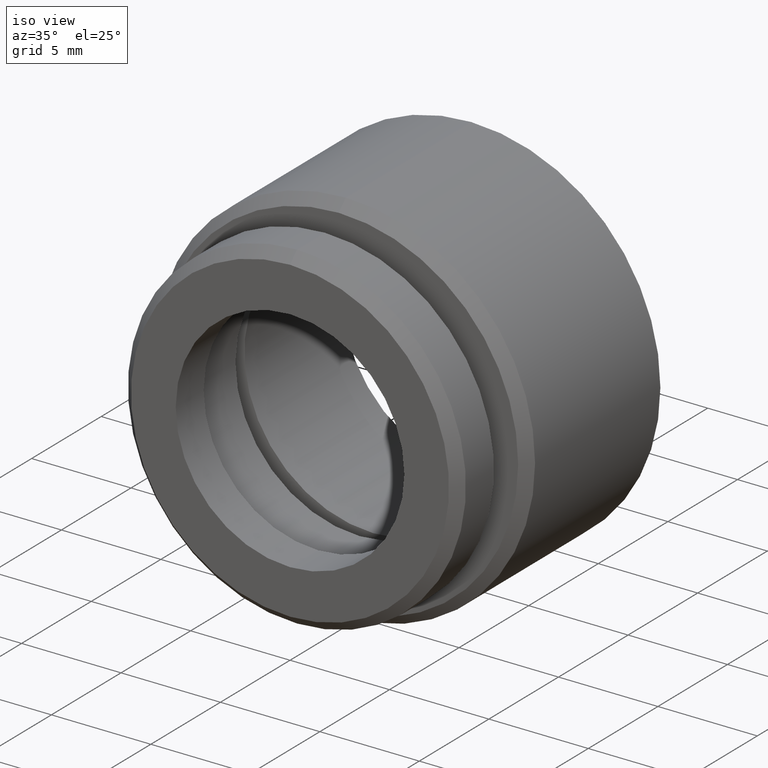
[diagram: clean part render]
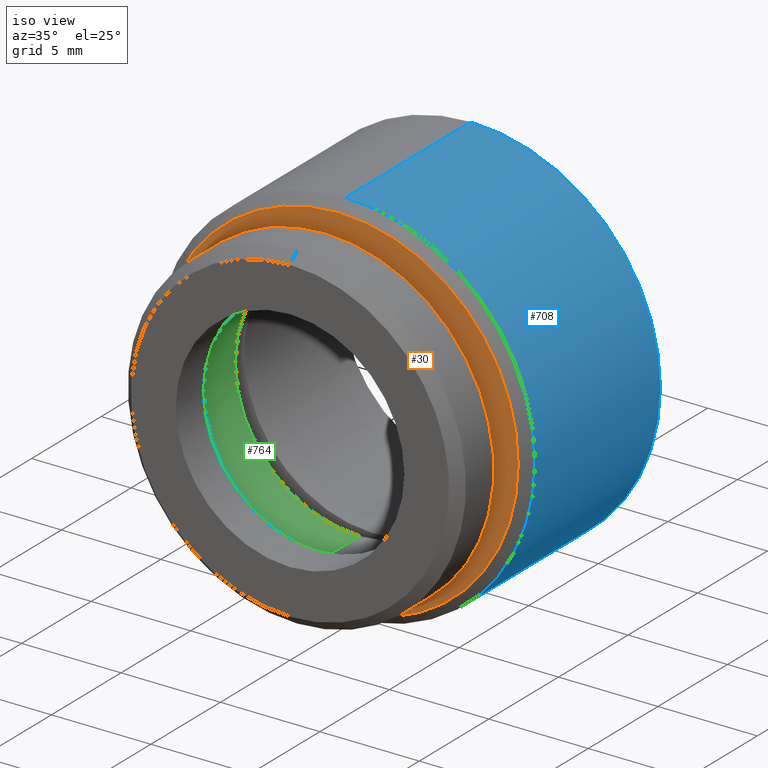
[diagram: same view with three faces highlighted in distinct colors, each labeled with its STEP entity id]
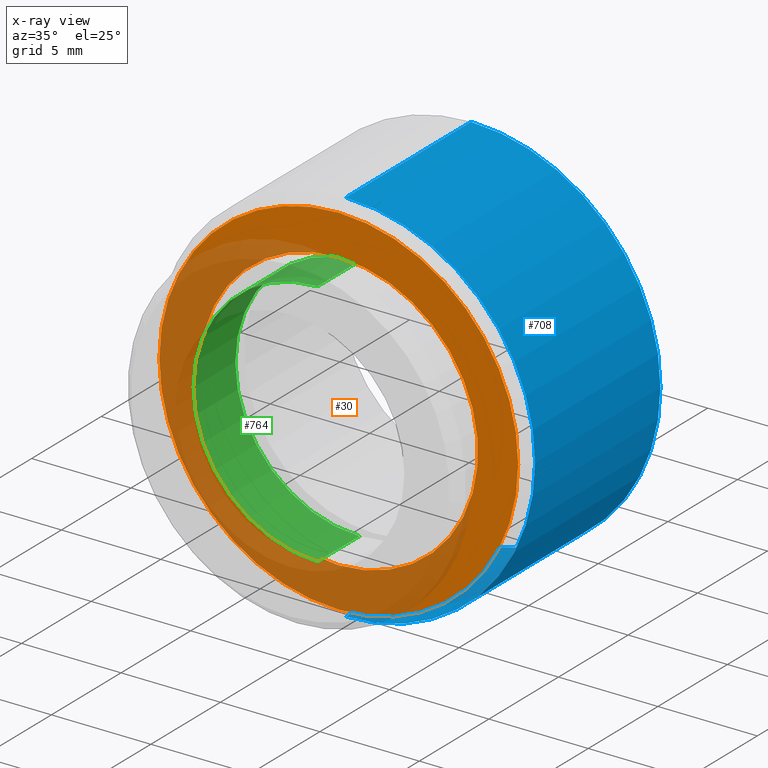
[diagram: x-ray of the same camera — body ghosted, the three highlighted faces saturated]
A machine part, iso view with three faces highlighted in distinct colors.
The next image is the same camera in x-ray (body ghosted, the three faces saturated) — at least one of them is partly hidden behind the body in this view.
Their STEP definitions:

[orange] entity #30 — the highlighted planar face has unit normal (0, -1, -0).
#8 = EDGE_CURVE ( 'NONE', #218, #389, #751, .T. ) ;
#9 = AXIS2_PLACEMENT_3D ( 'NONE', #808, #347, #866 ) ;
#30 = ADVANCED_FACE ( 'NONE', ( #696, #657 ), #232, .T. ) ;
#51 = DIRECTION ( 'NONE',  ( -0.0000000000000000000, -1.000000000000000000, -0.0000000000000000000 ) ) ;
#58 = DIRECTION ( 'NONE',  ( -0.0000000000000000000, -1.000000000000000000, -0.0000000000000000000 ) ) ;
#59 = CARTESIAN_POINT ( 'NONE',  ( 0.0000000000000000000, 3.500000000000000000, -7.000000000000000000 ) ) ;
#73 = ORIENTED_EDGE ( 'NONE', *, *, #705, .F. ) ;
#103 = ORIENTED_EDGE ( 'NONE', *, *, #316, .T. ) ;
#111 = EDGE_LOOP ( 'NONE', ( #371, #103 ) ) ;
#118 = AXIS2_PLACEMENT_3D ( 'NONE', #654, #51, #787 ) ;
#151 = AXIS2_PLACEMENT_3D ( 'NONE', #469, #58, #235 ) ;
#158 = VERTEX_POINT ( 'NONE', #309 ) ;
#188 = DIRECTION ( 'NONE',  ( -0.0000000000000000000, -1.000000000000000000, -0.0000000000000000000 ) ) ;
#206 = AXIS2_PLACEMENT_3D ( 'NONE', #587, #653, #498 ) ;
#218 = VERTEX_POINT ( 'NONE', #59 ) ;
#232 = PLANE ( 'NONE',  #206 ) ;
#235 = DIRECTION ( 'NONE',  ( 0.0000000000000000000, 0.0000000000000000000, -1.000000000000000000 ) ) ;
#309 = CARTESIAN_POINT ( 'NONE',  ( 0.0000000000000000000, 3.500000000000000000, 9.025000000000002100 ) ) ;
#316 = EDGE_CURVE ( 'NONE', #473, #158, #428, .T. ) ;
#331 = CIRCLE ( 'NONE', #488, 9.025000000000002100 ) ;
#347 = DIRECTION ( 'NONE',  ( -0.0000000000000000000, -1.000000000000000000, -0.0000000000000000000 ) ) ;
#371 = ORIENTED_EDGE ( 'NONE', *, *, #844, .T. ) ;
#389 = VERTEX_POINT ( 'NONE', #463 ) ;
#428 = CIRCLE ( 'NONE', #118, 9.025000000000002100 ) ;
#429 = CARTESIAN_POINT ( 'NONE',  ( 0.0000000000000000000, 3.500000000000000000, 0.0000000000000000000 ) ) ;
#463 = CARTESIAN_POINT ( 'NONE',  ( 8.572527594031473200E-016, 3.500000000000000000, 7.000000000000000000 ) ) ;
#469 = CARTESIAN_POINT ( 'NONE',  ( 0.0000000000000000000, 3.500000000000000000, 0.0000000000000000000 ) ) ;
#473 = VERTEX_POINT ( 'NONE', #519 ) ;
#488 = AXIS2_PLACEMENT_3D ( 'NONE', #429, #188, #711 ) ;
#498 = DIRECTION ( 'NONE',  ( 0.0000000000000000000, 0.0000000000000000000, -1.000000000000000000 ) ) ;
#499 = EDGE_LOOP ( 'NONE', ( #633, #73 ) ) ;
#519 = CARTESIAN_POINT ( 'NONE',  ( 1.135859906209170200E-015, 3.500000000000000000, -9.025000000000002100 ) ) ;
#587 = CARTESIAN_POINT ( 'NONE',  ( 7.000000000000000000, 3.500000000000000000, 0.0000000000000000000 ) ) ;
#633 = ORIENTED_EDGE ( 'NONE', *, *, #8, .F. ) ;
#653 = DIRECTION ( 'NONE',  ( 0.0000000000000000000, -1.000000000000000000, -0.0000000000000000000 ) ) ;
#654 = CARTESIAN_POINT ( 'NONE',  ( 0.0000000000000000000, 3.500000000000000000, 0.0000000000000000000 ) ) ;
#657 = FACE_BOUND ( 'NONE', #499, .T. ) ;
#696 = FACE_OUTER_BOUND ( 'NONE', #111, .T. ) ;
#705 = EDGE_CURVE ( 'NONE', #389, #218, #763, .T. ) ;
#711 = DIRECTION ( 'NONE',  ( 0.0000000000000000000, 0.0000000000000000000, -1.000000000000000000 ) ) ;
#751 = CIRCLE ( 'NONE', #151, 7.000000000000000000 ) ;
#763 = CIRCLE ( 'NONE', #9, 7.000000000000000000 ) ;
#787 = DIRECTION ( 'NONE',  ( 0.0000000000000000000, 0.0000000000000000000, -1.000000000000000000 ) ) ;
#808 = CARTESIAN_POINT ( 'NONE',  ( 0.0000000000000000000, 3.500000000000000000, 0.0000000000000000000 ) ) ;
#844 = EDGE_CURVE ( 'NONE', #158, #473, #331, .T. ) ;
#866 = DIRECTION ( 'NONE',  ( 0.0000000000000000000, 0.0000000000000000000, -1.000000000000000000 ) ) ;

[blue] entity #708 — the highlighted cylindrical surface (partial cylindrical patch) has radius 9.525 mm, axis along (-0, -1, -0).
#5 = EDGE_LOOP ( 'NONE', ( #522, #6, #822, #771 ) ) ;
#6 = ORIENTED_EDGE ( 'NONE', *, *, #441, .T. ) ;
#34 = CARTESIAN_POINT ( 'NONE',  ( 0.0000000000000000000, 12.99999999999999600, 0.0000000000000000000 ) ) ;
#64 = EDGE_CURVE ( 'NONE', #848, #671, #819, .T. ) ;
#108 = VECTOR ( 'NONE', #149, 1000.000000000000000 ) ;
#149 = DIRECTION ( 'NONE',  ( -0.0000000000000000000, -1.000000000000000000, -0.0000000000000000000 ) ) ;
#152 = AXIS2_PLACEMENT_3D ( 'NONE', #400, #343, #448 ) ;
#179 = VERTEX_POINT ( 'NONE', #815 ) ;
#183 = CARTESIAN_POINT ( 'NONE',  ( 0.0000000000000000000, 4.000000000000001800, 0.0000000000000000000 ) ) ;
#194 = CARTESIAN_POINT ( 'NONE',  ( 1.166476076187854000E-015, 12.99999999999999600, 9.525000000000000400 ) ) ;
#268 = CIRCLE ( 'NONE', #792, 9.525000000000000400 ) ;
#291 = VERTEX_POINT ( 'NONE', #194 ) ;
#292 = VECTOR ( 'NONE', #306, 1000.000000000000000 ) ;
#306 = DIRECTION ( 'NONE',  ( -0.0000000000000000000, -1.000000000000000000, -0.0000000000000000000 ) ) ;
#337 = DIRECTION ( 'NONE',  ( -0.0000000000000000000, -1.000000000000000000, -0.0000000000000000000 ) ) ;
#338 = DIRECTION ( 'NONE',  ( 0.0000000000000000000, 0.0000000000000000000, -1.000000000000000000 ) ) ;
#343 = DIRECTION ( 'NONE',  ( -0.0000000000000000000, -1.000000000000000000, -0.0000000000000000000 ) ) ;
#380 = AXIS2_PLACEMENT_3D ( 'NONE', #183, #440, #338 ) ;
#400 = CARTESIAN_POINT ( 'NONE',  ( 0.0000000000000000000, 0.0000000000000000000, 0.0000000000000000000 ) ) ;
#408 = LINE ( 'NONE', #747, #292 ) ;
#440 = DIRECTION ( 'NONE',  ( 0.0000000000000000000, 1.000000000000000000, 0.0000000000000000000 ) ) ;
#441 = EDGE_CURVE ( 'NONE', #291, #848, #408, .T. ) ;
#448 = DIRECTION ( 'NONE',  ( 0.0000000000000000000, 0.0000000000000000000, -1.000000000000000000 ) ) ;
#485 = CARTESIAN_POINT ( 'NONE',  ( 0.0000000000000000000, 0.0000000000000000000, -9.525000000000000400 ) ) ;
#491 = CARTESIAN_POINT ( 'NONE',  ( 1.166476076187854000E-015, 4.000000000000001800, 9.525000000000000400 ) ) ;
#522 = ORIENTED_EDGE ( 'NONE', *, *, #690, .T. ) ;
#573 = CARTESIAN_POINT ( 'NONE',  ( 0.0000000000000000000, 4.000000000000001800, -9.525000000000000400 ) ) ;
#614 = EDGE_CURVE ( 'NONE', #179, #671, #618, .T. ) ;
#618 = LINE ( 'NONE', #485, #108 ) ;
#626 = FACE_OUTER_BOUND ( 'NONE', #5, .T. ) ;
#659 = DIRECTION ( 'NONE',  ( 0.0000000000000000000, 0.0000000000000000000, 1.000000000000000000 ) ) ;
#671 = VERTEX_POINT ( 'NONE', #573 ) ;
#690 = EDGE_CURVE ( 'NONE', #179, #291, #268, .T. ) ;
#708 = ADVANCED_FACE ( 'NONE', ( #626 ), #745, .T. ) ;
#745 = CYLINDRICAL_SURFACE ( 'NONE', #152, 9.525000000000000400 ) ;
#747 = CARTESIAN_POINT ( 'NONE',  ( 1.166476076187854000E-015, 0.0000000000000000000, 9.525000000000000400 ) ) ;
#771 = ORIENTED_EDGE ( 'NONE', *, *, #614, .F. ) ;
#792 = AXIS2_PLACEMENT_3D ( 'NONE', #34, #337, #659 ) ;
#815 = CARTESIAN_POINT ( 'NONE',  ( 0.0000000000000000000, 12.99999999999999600, -9.525000000000000400 ) ) ;
#819 = CIRCLE ( 'NONE', #380, 9.525000000000000400 ) ;
#822 = ORIENTED_EDGE ( 'NONE', *, *, #64, .T. ) ;
#848 = VERTEX_POINT ( 'NONE', #491 ) ;

[green] entity #764 — the highlighted cylindrical surface (partial cylindrical patch) has radius 6.25 mm, axis along (-0, -1, -0).
#18 = VECTOR ( 'NONE', #781, 1000.000000000000000 ) ;
#22 = AXIS2_PLACEMENT_3D ( 'NONE', #351, #375, #187 ) ;
#28 = FACE_OUTER_BOUND ( 'NONE', #297, .T. ) ;
#41 = DIRECTION ( 'NONE',  ( -0.0000000000000000000, -1.000000000000000000, -0.0000000000000000000 ) ) ;
#81 = AXIS2_PLACEMENT_3D ( 'NONE', #706, #41, #195 ) ;
#83 = ORIENTED_EDGE ( 'NONE', *, *, #479, .F. ) ;
#86 = EDGE_CURVE ( 'NONE', #131, #276, #689, .T. ) ;
#104 = DIRECTION ( 'NONE',  ( -0.0000000000000000000, -1.000000000000000000, -0.0000000000000000000 ) ) ;
#131 = VERTEX_POINT ( 'NONE', #255 ) ;
#135 = CARTESIAN_POINT ( 'NONE',  ( 0.0000000000000000000, 0.0000000000000000000, -6.250000000000000000 ) ) ;
#156 = CIRCLE ( 'NONE', #22, 6.250000000000000000 ) ;
#164 = DIRECTION ( 'NONE',  ( -0.0000000000000000000, -1.000000000000000000, -0.0000000000000000000 ) ) ;
#187 = DIRECTION ( 'NONE',  ( 0.0000000000000000000, 0.0000000000000000000, -1.000000000000000000 ) ) ;
#195 = DIRECTION ( 'NONE',  ( 0.0000000000000000000, 0.0000000000000000000, -1.000000000000000000 ) ) ;
#233 = ORIENTED_EDGE ( 'NONE', *, *, #287, .T. ) ;
#255 = CARTESIAN_POINT ( 'NONE',  ( 7.654042494670956600E-016, 5.000000000000000000, 6.249999999999999100 ) ) ;
#276 = VERTEX_POINT ( 'NONE', #624 ) ;
#287 = EDGE_CURVE ( 'NONE', #276, #446, #156, .T. ) ;
#297 = EDGE_LOOP ( 'NONE', ( #358, #409, #233, #83 ) ) ;
#339 = CARTESIAN_POINT ( 'NONE',  ( 0.0000000000000000000, 2.000000000000000000, -6.250000000000000000 ) ) ;
#351 = CARTESIAN_POINT ( 'NONE',  ( 0.0000000000000000000, 2.000000000000000000, 0.0000000000000000000 ) ) ;
#358 = ORIENTED_EDGE ( 'NONE', *, *, #779, .F. ) ;
#361 = VERTEX_POINT ( 'NONE', #431 ) ;
#375 = DIRECTION ( 'NONE',  ( -0.0000000000000000000, -1.000000000000000000, -0.0000000000000000000 ) ) ;
#386 = LINE ( 'NONE', #135, #18 ) ;
#409 = ORIENTED_EDGE ( 'NONE', *, *, #86, .T. ) ;
#431 = CARTESIAN_POINT ( 'NONE',  ( 0.0000000000000000000, 5.000000000000000000, -6.249999999999999100 ) ) ;
#446 = VERTEX_POINT ( 'NONE', #339 ) ;
#479 = EDGE_CURVE ( 'NONE', #361, #446, #386, .T. ) ;
#624 = CARTESIAN_POINT ( 'NONE',  ( 7.654042494670957600E-016, 2.000000000000000000, 6.250000000000000000 ) ) ;
#637 = CARTESIAN_POINT ( 'NONE',  ( 0.0000000000000000000, 5.000000000000000000, 0.0000000000000000000 ) ) ;
#684 = CIRCLE ( 'NONE', #823, 6.249999999999999100 ) ;
#689 = LINE ( 'NONE', #805, #785 ) ;
#706 = CARTESIAN_POINT ( 'NONE',  ( 0.0000000000000000000, 0.0000000000000000000, 0.0000000000000000000 ) ) ;
#761 = DIRECTION ( 'NONE',  ( 0.0000000000000000000, 0.0000000000000000000, -1.000000000000000000 ) ) ;
#764 = ADVANCED_FACE ( 'NONE', ( #28 ), #861, .F. ) ;
#779 = EDGE_CURVE ( 'NONE', #131, #361, #684, .T. ) ;
#781 = DIRECTION ( 'NONE',  ( -0.0000000000000000000, -1.000000000000000000, -0.0000000000000000000 ) ) ;
#785 = VECTOR ( 'NONE', #164, 1000.000000000000000 ) ;
#805 = CARTESIAN_POINT ( 'NONE',  ( 7.654042494670957600E-016, 0.0000000000000000000, 6.250000000000000000 ) ) ;
#823 = AXIS2_PLACEMENT_3D ( 'NONE', #637, #104, #761 ) ;
#861 = CYLINDRICAL_SURFACE ( 'NONE', #81, 6.250000000000000000 ) ;